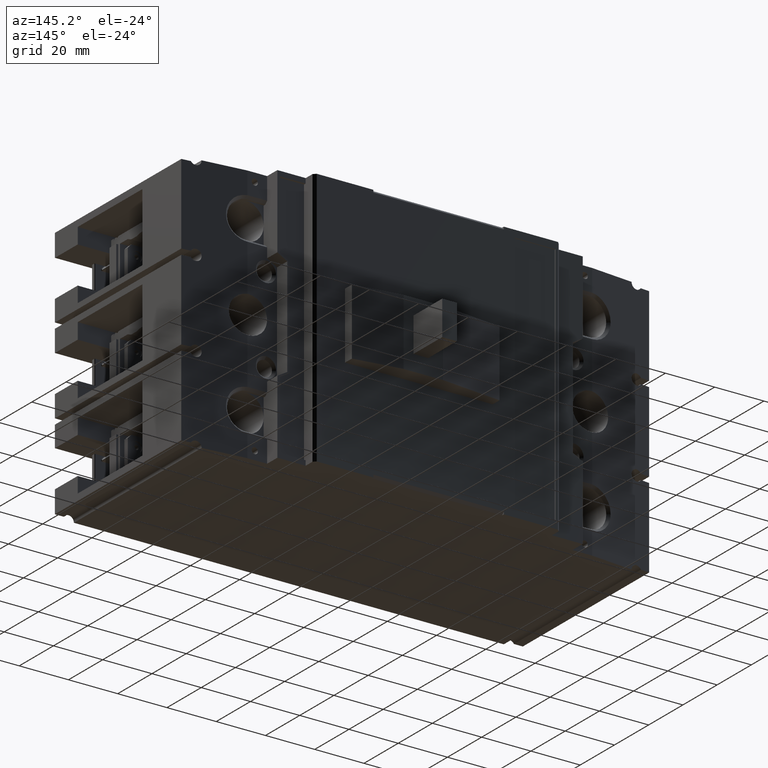
[diagram: clean part render]
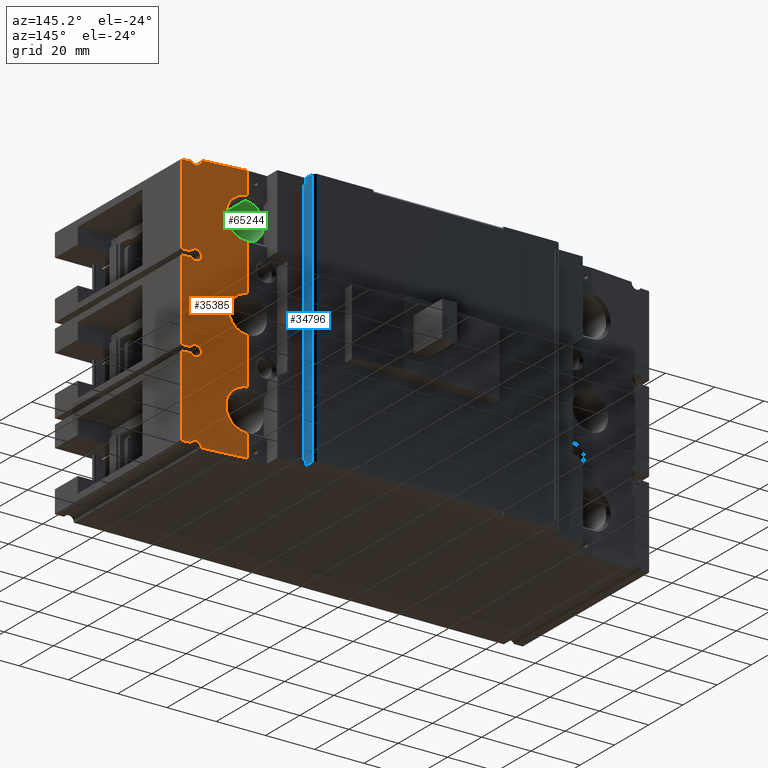
[diagram: same view with three faces highlighted in distinct colors, each labeled with its STEP entity id]
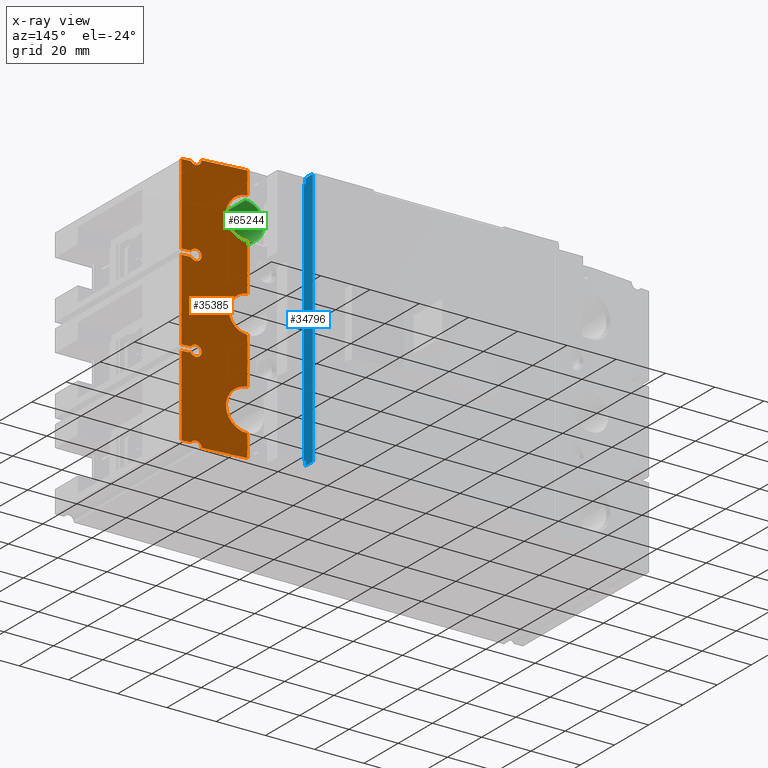
[diagram: x-ray of the same camera — body ghosted, the three highlighted faces saturated]
A machine part, auxiliary view with three faces highlighted in distinct colors.
The next image is the same camera in x-ray (body ghosted, the three faces saturated) — at least one of them is partly hidden behind the body in this view.
Their STEP definitions:

[orange] entity #35385 — the highlighted planar face has unit normal (-0.1062, -0.9943, 0).
#716 = CARTESIAN_POINT ( 'NONE',  ( 3.581346729293921172, 2.923653901594851945, -0.6174211225047644414 ) ) ;
#817 = PLANE ( 'NONE',  #7703 ) ;
#821 = DIRECTION ( 'NONE',  ( -0.000000000000000000, -0.000000000000000000, -1.000000000000000000 ) ) ;
#851 = CARTESIAN_POINT ( 'NONE',  ( 2.759465541847904824, 3.011430812414115366, 1.043831880186663064 ) ) ;
#962 = CARTESIAN_POINT ( 'NONE',  ( 3.523622047244094446, 2.929818897637774366, 0.6023622047244094890 ) ) ;
#1213 = EDGE_CURVE ( 'NONE', #73055, #65920, #57463, .T. ) ;
#1279 = CARTESIAN_POINT ( 'NONE',  ( 2.755900752126896780, 3.011811209409630763, -1.043776429652952364 ) ) ;
#2118 =( BOUNDED_CURVE ( )  B_SPLINE_CURVE ( 3, ( #962, #53749, #59148, #18683 ),
 .UNSPECIFIED., .F., .F. ) 
 B_SPLINE_CURVE_WITH_KNOTS ( ( 4, 4 ),
 ( 1.570796326794896558, 2.591545682068960410 ),
 .UNSPECIFIED. ) 
 CURVE ( )  GEOMETRIC_REPRESENTATION_ITEM ( )  RATIONAL_B_SPLINE_CURVE ( ( 1.000000000000000000, 0.9150410248622172782, 0.9150410248622172782, 1.000000000000000000 ) ) 
 REPRESENTATION_ITEM ( '' )  );
#2398 = LINE ( 'NONE', #24728, #31111 ) ;
#2434 = CARTESIAN_POINT ( 'NONE',  ( 2.759501042336657495, 3.011427020961888967, -1.043833442557797975 ) ) ;
#2450 = CARTESIAN_POINT ( 'NONE',  ( 3.540986028237870453, 2.927964424467638604, 1.929550841766272118 ) ) ;
#3131 = DIRECTION ( 'NONE',  ( -0.000000000000000000, -0.000000000000000000, 1.000000000000000000 ) ) ;
#3882 = B_SPLINE_CURVE_WITH_KNOTS ( 'NONE', 3,
 ( #30138, #52116, #41650, #64449, #64807, #75639, #53635, #34766, #70617, #851, #18168 ),
 .UNSPECIFIED., .F., .F.,
 ( 4, 1, 1, 1, 1, 1, 1, 1, 4 ),
 ( 0.000000000000000000, 0.0006743985581538102696, 0.002671109849455638712, 0.004667821140757462926, 0.006664532432059291911, 0.008661243723361118294, 0.01065795501466294468, 0.01265466630596477279, 0.01292373732341812152 ),
 .UNSPECIFIED. ) ;
#3953 = CARTESIAN_POINT ( 'NONE',  ( 3.437007874015748143, 2.939069291338564316, 1.958890770440286477 ) ) ;
#4185 = EDGE_CURVE ( 'NONE', #67054, #44710, #68939, .T. ) ;
#4301 = VERTEX_POINT ( 'NONE', #37973 ) ;
#5322 = CARTESIAN_POINT ( 'NONE',  ( 3.075043486386031422, 2.977727087937385608, 1.386806397334696017 ) ) ;
#5676 = VERTEX_POINT ( 'NONE', #8651 ) ;
#6059 = CARTESIAN_POINT ( 'NONE',  ( 3.075045458065042148, 2.977726877362108837, 1.378049800193145602 ) ) ;
#6298 = VECTOR ( 'NONE', #66789, 39.37007874015748854 ) ;
#6634 = EDGE_CURVE ( 'NONE', #4301, #47143, #69475, .T. ) ;
#6789 = EDGE_CURVE ( 'NONE', #62333, #69626, #23937, .T. ) ;
#7345 = ORIENTED_EDGE ( 'NONE', *, *, #29533, .T. ) ;
#7390 = VERTEX_POINT ( 'NONE', #57660 ) ;
#7703 = AXIS2_PLACEMENT_3D ( 'NONE', #47422, #11622, #70581 ) ;
#7907 = ORIENTED_EDGE ( 'NONE', *, *, #24096, .T. ) ;
#8148 = CARTESIAN_POINT ( 'NONE',  ( 3.028546731431917216, 2.982692941366612782, -1.554146043485832296 ) ) ;
#8387 = VERTEX_POINT ( 'NONE', #56187 ) ;
#8651 = CARTESIAN_POINT ( 'NONE',  ( 3.523622047244094446, 2.929818897637774366, -1.980314960629921295 ) ) ;
#9899 = EDGE_CURVE ( 'NONE', #40050, #8387, #21323, .T. ) ;
#9973 = ORIENTED_EDGE ( 'NONE', *, *, #65391, .T. ) ;
#10156 = LINE ( 'NONE', #33645, #32589 ) ;
#10313 = ORIENTED_EDGE ( 'NONE', *, *, #9899, .T. ) ;
#10428 = EDGE_CURVE ( 'NONE', #58907, #26809, #12778, .T. ) ;
#10969 = ORIENTED_EDGE ( 'NONE', *, *, #34590, .F. ) ;
#11102 = CARTESIAN_POINT ( 'NONE',  ( 3.523622047244094446, 2.929818897637774366, 0.7755905511811024278 ) ) ;
#11212 = CARTESIAN_POINT ( 'NONE',  ( 3.740157480314961536, 2.906692913385827026, -0.6437007874015747699 ) ) ;
#11516 = CARTESIAN_POINT ( 'NONE',  ( 3.523622047244094446, 2.929818897637774366, -0.6023622047244094890 ) ) ;
#11622 = DIRECTION ( 'NONE',  ( -0.1061960683430963198, -0.9943452092047653235, 0.000000000000000000 ) ) ;
#12184 = EDGE_CURVE ( 'NONE', #69626, #73055, #70622, .T. ) ;
#12347 = EDGE_CURVE ( 'NONE', #22120, #76008, #49479, .T. ) ;
#12376 = CARTESIAN_POINT ( 'NONE',  ( 2.755905511811024056, 3.011811023622047223, 2.066929133858267598 ) ) ;
#12620 = ORIENTED_EDGE ( 'NONE', *, *, #57159, .T. ) ;
#12778 = LINE ( 'NONE', #66315, #29905 ) ;
#13229 = CARTESIAN_POINT ( 'NONE',  ( 3.523622047244094446, 2.929818897637774366, -0.7755905511811024278 ) ) ;
#13313 = CARTESIAN_POINT ( 'NONE',  ( 3.437007874015748587, 2.939069291338573642, -2.066929133858267598 ) ) ;
#13603 = CARTESIAN_POINT ( 'NONE',  ( 3.061672135569503794, 2.979155148204748915, -1.273783796220279596 ) ) ;
#14175 = DIRECTION ( 'NONE',  ( -0.9943452092047166957, 0.1061960683435513170, 0.000000000000000000 ) ) ;
#14747 = CARTESIAN_POINT ( 'NONE',  ( 3.523622047244094446, 2.929818897637774366, -0.7755905511811024278 ) ) ;
#15033 =( BOUNDED_CURVE ( )  B_SPLINE_CURVE ( 3, ( #55985, #24861, #26300, #13313 ),
 .UNSPECIFIED., .F., .T. ) 
 B_SPLINE_CURVE_WITH_KNOTS ( ( 4, 4 ),
 ( 4.712388980384689674, 6.283185307179586232 ),
 .UNSPECIFIED. ) 
 CURVE ( )  GEOMETRIC_REPRESENTATION_ITEM ( )  RATIONAL_B_SPLINE_CURVE ( ( 1.000000000000000000, 0.8047378541243649375, 0.8047378541243649375, 1.000000000000000000 ) ) 
 REPRESENTATION_ITEM ( '' )  );
#15259 = EDGE_CURVE ( 'NONE', #38578, #7390, #44921, .T. ) ;
#16516 = CARTESIAN_POINT ( 'NONE',  ( 3.350393700787401396, 2.948319685039354265, 0.6023622047244096001 ) ) ;
#16725 = ORIENTED_EDGE ( 'NONE', *, *, #36002, .F. ) ;
#16779 = DIRECTION ( 'NONE',  ( -0.000000000000000000, -0.000000000000000000, 1.000000000000000000 ) ) ;
#17377 =( BOUNDED_CURVE ( )  B_SPLINE_CURVE ( 3, ( #65189, #30899, #35520, #71363 ),
 .UNSPECIFIED., .F., .F. ) 
 B_SPLINE_CURVE_WITH_KNOTS ( ( 4, 4 ),
 ( 4.712388980384689674, 7.853981633974482790 ),
 .UNSPECIFIED. ) 
 CURVE ( )  GEOMETRIC_REPRESENTATION_ITEM ( )  RATIONAL_B_SPLINE_CURVE ( ( 1.000000000000000000, 0.3333333333333333703, 0.3333333333333333703, 1.000000000000000000 ) ) 
 REPRESENTATION_ITEM ( '' )  );
#18168 = CARTESIAN_POINT ( 'NONE',  ( 2.755900903618701214, 3.011756421462688404, 1.043831635076535758 ) ) ;
#18291 = VERTEX_POINT ( 'NONE', #50097 ) ;
#18538 = CARTESIAN_POINT ( 'NONE',  ( 2.789347217779210908, 3.008239449424523038, -1.710211520500850124 ) ) ;
#18683 = CARTESIAN_POINT ( 'NONE',  ( 3.597460627297270896, 2.921932937288139964, 0.6437007874015749920 ) ) ;
#19006 = CARTESIAN_POINT ( 'NONE',  ( 2.917276082257390879, 2.994576646698449363, -1.090202272195455624 ) ) ;
#19020 = DIRECTION ( 'NONE',  ( 0.9943452092047166957, -0.1061960683435513170, 0.000000000000000000 ) ) ;
#19047 = ORIENTED_EDGE ( 'NONE', *, *, #10428, .F. ) ;
#19114 = EDGE_CURVE ( 'NONE', #76008, #58907, #47988, .T. ) ;
#19194 =( BOUNDED_CURVE ( )  B_SPLINE_CURVE ( 3, ( #47252, #35689, #70778, #59205 ),
 .UNSPECIFIED., .F., .F. ) 
 B_SPLINE_CURVE_WITH_KNOTS ( ( 4, 4 ),
 ( 3.691639625110624046, 4.712388980384689674 ),
 .UNSPECIFIED. ) 
 CURVE ( )  GEOMETRIC_REPRESENTATION_ITEM ( )  RATIONAL_B_SPLINE_CURVE ( ( 1.000000000000000000, 0.9150410248622169451, 0.9150410248622169451, 1.000000000000000000 ) ) 
 REPRESENTATION_ITEM ( '' )  );
#19306 = CARTESIAN_POINT ( 'NONE',  ( 2.759465541847906156, 3.011430812414116698, -1.712073631624361658 ) ) ;
#19358 = CARTESIAN_POINT ( 'NONE',  ( 3.073666009682896050, 2.977874202449259933, -1.334161257345227503 ) ) ;
#19533 = CARTESIAN_POINT ( 'NONE',  ( 3.740157480314960647, 2.906692913385827026, 0.7342519685039370358 ) ) ;
#19707 = VECTOR ( 'NONE', #75025, 39.37007874015748854 ) ;
#21153 = CARTESIAN_POINT ( 'NONE',  ( 3.523622047244094446, 2.929818897637774366, 0.6023622047244094890 ) ) ;
#21323 =( BOUNDED_CURVE ( )  B_SPLINE_CURVE ( 3, ( #13229, #43245, #53323, #24386 ),
 .UNSPECIFIED., .F., .T. ) 
 B_SPLINE_CURVE_WITH_KNOTS ( ( 4, 4 ),
 ( 1.570796326794896558, 2.591545682068960410 ),
 .UNSPECIFIED. ) 
 CURVE ( )  GEOMETRIC_REPRESENTATION_ITEM ( )  RATIONAL_B_SPLINE_CURVE ( ( 1.000000000000000000, 0.9150410248622172782, 0.9150410248622172782, 1.000000000000000000 ) ) 
 REPRESENTATION_ITEM ( '' )  );
#22120 = VERTEX_POINT ( 'NONE', #40549 ) ;
#22152 = EDGE_LOOP ( 'NONE', ( #42458, #61309, #68882, #73281, #22665, #7345, #10969, #37377, #59617, #29309, #12620, #38458, #56842, #7907, #9973, #62280, #10313, #67678, #48607, #69002, #55469, #31455, #19047, #63069, #30775, #16725, #57102, #58869, #58688 ) ) ;
#22300 = CARTESIAN_POINT ( 'NONE',  ( 2.755900752126896780, 3.011811209409630763, -1.043776429652952364 ) ) ;
#22665 = ORIENTED_EDGE ( 'NONE', *, *, #6634, .T. ) ;
#23782 = CARTESIAN_POINT ( 'NONE',  ( 3.073666009682895606, 2.977874202449259489, 1.421744254465795887 ) ) ;
#23937 = LINE ( 'NONE', #12376, #55515 ) ;
#24096 = EDGE_CURVE ( 'NONE', #36234, #51245, #10156, .T. ) ;
#24212 = CARTESIAN_POINT ( 'NONE',  ( 3.523622047244094446, 2.929818897637774366, 0.6023622047244094890 ) ) ;
#24218 = VECTOR ( 'NONE', #47815, 39.37007874015748143 ) ;
#24386 = CARTESIAN_POINT ( 'NONE',  ( 3.597460627297270896, 2.921932937288139964, -0.7342519685039370358 ) ) ;
#24603 = VERTEX_POINT ( 'NONE', #39209 ) ;
#24661 = VERTEX_POINT ( 'NONE', #38090 ) ;
#24728 = CARTESIAN_POINT ( 'NONE',  ( 3.740157480314960647, 2.906692913385827026, 2.066929133858267598 ) ) ;
#24861 = CARTESIAN_POINT ( 'NONE',  ( 3.472884639260662265, 2.935237652810406939, -1.980314960629921295 ) ) ;
#25161 = CARTESIAN_POINT ( 'NONE',  ( 2.789423595707148706, 3.008231292262029122, -1.045703238913955113 ) ) ;
#25257 = EDGE_CURVE ( 'NONE', #5676, #26809, #15033, .T. ) ;
#25869 = DIRECTION ( 'NONE',  ( -0.000000000000000000, -0.000000000000000000, 1.000000000000000000 ) ) ;
#26300 = CARTESIAN_POINT ( 'NONE',  ( 3.437007874015747255, 2.939069291338564760, -2.016191725874834972 ) ) ;
#26420 = EDGE_CURVE ( 'NONE', #44710, #62333, #3882, .T. ) ;
#26645 = CARTESIAN_POINT ( 'NONE',  ( 3.597460627297244695, 2.921932937288189258, 2.021653543307086576 ) ) ;
#26809 = VERTEX_POINT ( 'NONE', #71959 ) ;
#27442 = CARTESIAN_POINT ( 'NONE',  ( 3.597460627297270896, 2.921932937288139964, 2.021653543307086576 ) ) ;
#28162 = CARTESIAN_POINT ( 'NONE',  ( 2.755905511811024056, 3.011811023622047223, 2.066929133858267598 ) ) ;
#28805 = CARTESIAN_POINT ( 'NONE',  ( 2.917276082257389991, 2.994576646698449363, 1.665703239615567322 ) ) ;
#29168 = EDGE_CURVE ( 'NONE', #24603, #38578, #37637, .T. ) ;
#29309 = ORIENTED_EDGE ( 'NONE', *, *, #29919, .T. ) ;
#29533 = EDGE_CURVE ( 'NONE', #47143, #59437, #50554, .T. ) ;
#29572 = CARTESIAN_POINT ( 'NONE',  ( 3.740157480314961536, 2.906692913385827026, -2.021653543307086576 ) ) ;
#29905 = VECTOR ( 'NONE', #47420, 39.37007874015748854 ) ;
#29919 = EDGE_CURVE ( 'NONE', #7390, #76241, #72802, .T. ) ;
#30138 = CARTESIAN_POINT ( 'NONE',  ( 3.075045458065042148, 2.977726877362108837, 1.378049800193145602 ) ) ;
#30775 = ORIENTED_EDGE ( 'NONE', *, *, #12347, .F. ) ;
#30899 = CARTESIAN_POINT ( 'NONE',  ( 3.350393700787401396, 2.948319685039354265, -0.6023622047244096001 ) ) ;
#30952 = CARTESIAN_POINT ( 'NONE',  ( 3.597460627297244695, 2.921932937288189258, -0.7342519685039370358 ) ) ;
#30963 = EDGE_CURVE ( 'NONE', #36234, #18291, #2398, .T. ) ;
#30968 = LINE ( 'NONE', #37499, #50217 ) ;
#31111 = VECTOR ( 'NONE', #25869, 39.37007874015748143 ) ;
#31369 = VECTOR ( 'NONE', #3131, 39.37007874015748143 ) ;
#31455 = ORIENTED_EDGE ( 'NONE', *, *, #25257, .T. ) ;
#31629 = CARTESIAN_POINT ( 'NONE',  ( 3.554448634728778700, 2.926526618094409393, 0.7755905511811027608 ) ) ;
#31640 = CARTESIAN_POINT ( 'NONE',  ( 2.917184962002903337, 2.994586378341542510, -1.665760106237442528 ) ) ;
#32001 = VERTEX_POINT ( 'NONE', #56318 ) ;
#32589 = VECTOR ( 'NONE', #70996, 39.37007874015748854 ) ;
#33645 = CARTESIAN_POINT ( 'NONE',  ( 3.740157480314960647, 2.906692913385827026, -0.6437007874015749920 ) ) ;
#34590 = EDGE_CURVE ( 'NONE', #24603, #59437, #46437, .T. ) ;
#34766 = CARTESIAN_POINT ( 'NONE',  ( 2.844951658188984212, 3.002300895188785734, 1.056766054938854671 ) ) ;
#35331 = CARTESIAN_POINT ( 'NONE',  ( 2.979586023902064174, 2.987921944930734153, 1.616424668613766880 ) ) ;
#35385 = ADVANCED_FACE ( 'NONE', ( #75603 ), #817, .F. ) ;
#35520 = CARTESIAN_POINT ( 'NONE',  ( 3.350393700787401396, 2.948319685039354265, -0.7755905511811024278 ) ) ;
#35689 = CARTESIAN_POINT ( 'NONE',  ( 3.581346729293920728, 2.923653901594851945, -1.995373878410276580 ) ) ;
#36002 = EDGE_CURVE ( 'NONE', #65920, #22120, #48997, .T. ) ;
#36234 = VERTEX_POINT ( 'NONE', #11212 ) ;
#36297 = VERTEX_POINT ( 'NONE', #43138 ) ;
#36541 = VERTEX_POINT ( 'NONE', #45785 ) ;
#37377 = ORIENTED_EDGE ( 'NONE', *, *, #29168, .T. ) ;
#37499 = CARTESIAN_POINT ( 'NONE',  ( 3.740157480314960647, 2.906692913385827026, -2.021653543307086576 ) ) ;
#37637 = LINE ( 'NONE', #19533, #66544 ) ;
#37715 = CARTESIAN_POINT ( 'NONE',  ( 2.755905511811025388, 3.011811023622047223, 0.2946186918719638226 ) ) ;
#37973 = CARTESIAN_POINT ( 'NONE',  ( 3.437007874015748587, 2.939069291338573642, 2.066929133858267598 ) ) ;
#38090 = CARTESIAN_POINT ( 'NONE',  ( 3.597460627297286440, 2.921932937288137744, -2.021653543307077250 ) ) ;
#38239 = CARTESIAN_POINT ( 'NONE',  ( 2.755905511811025388, 3.011811023622047223, 0.2946186918719638226 ) ) ;
#38458 = ORIENTED_EDGE ( 'NONE', *, *, #43049, .T. ) ;
#38578 = VERTEX_POINT ( 'NONE', #42586 ) ;
#38871 = VECTOR ( 'NONE', #51674, 39.37007874015748143 ) ;
#39209 = CARTESIAN_POINT ( 'NONE',  ( 3.740157480314961536, 2.906692913385827026, 0.7342519685039370358 ) ) ;
#39217 = CARTESIAN_POINT ( 'NONE',  ( 3.350393700787401396, 2.948319685039354265, 0.7755905511811024278 ) ) ;
#39264 = LINE ( 'NONE', #55549, #31369 ) ;
#40050 = VERTEX_POINT ( 'NONE', #14747 ) ;
#40549 = CARTESIAN_POINT ( 'NONE',  ( 3.075045458065043480, 2.977726877362110169, -1.377855711617878232 ) ) ;
#40969 = EDGE_CURVE ( 'NONE', #8387, #42461, #41703, .T. ) ;
#41511 = CARTESIAN_POINT ( 'NONE',  ( 3.597460627297286440, 2.921932937288137744, -0.6437007874015652220 ) ) ;
#41639 = CARTESIAN_POINT ( 'NONE',  ( 3.437007874015748587, 2.939069291338582968, 2.066929133858267598 ) ) ;
#41650 = CARTESIAN_POINT ( 'NONE',  ( 3.073674121744990995, 2.977873336080992139, 1.334176544938844300 ) ) ;
#41703 = LINE ( 'NONE', #30952, #47974 ) ;
#42458 = ORIENTED_EDGE ( 'NONE', *, *, #26420, .F. ) ;
#42461 = VERTEX_POINT ( 'NONE', #73607 ) ;
#42586 = CARTESIAN_POINT ( 'NONE',  ( 3.597460627297286440, 2.921932937288137744, 0.7342519685039466948 ) ) ;
#42844 = CARTESIAN_POINT ( 'NONE',  ( 3.075043486386031866, 2.977727087937385608, -1.369099114476326928 ) ) ;
#43049 = EDGE_CURVE ( 'NONE', #36297, #18291, #57297, .T. ) ;
#43138 = CARTESIAN_POINT ( 'NONE',  ( 3.597460627297270896, 2.921932937288139964, 0.6437007874015749920 ) ) ;
#43172 = CARTESIAN_POINT ( 'NONE',  ( 3.075045458065043480, 2.977726877362110169, -1.377855711617878232 ) ) ;
#43196 = EDGE_CURVE ( 'NONE', #24661, #5676, #19194, .T. ) ;
#43245 = CARTESIAN_POINT ( 'NONE',  ( 3.554448634728777812, 2.926526618094409393, -0.7755905511811024278 ) ) ;
#44710 = VERTEX_POINT ( 'NONE', #61579 ) ;
#44921 =( BOUNDED_CURVE ( )  B_SPLINE_CURVE ( 3, ( #65164, #60932, #31629, #55144 ),
 .UNSPECIFIED., .F., .F. ) 
 B_SPLINE_CURVE_WITH_KNOTS ( ( 4, 4 ),
 ( 3.691639625110625378, 4.712388980384689674 ),
 .UNSPECIFIED. ) 
 CURVE ( )  GEOMETRIC_REPRESENTATION_ITEM ( )  RATIONAL_B_SPLINE_CURVE ( ( 1.000000000000000000, 0.9150410248622171672, 0.9150410248622171672, 1.000000000000000000 ) ) 
 REPRESENTATION_ITEM ( '' )  );
#45126 = CARTESIAN_POINT ( 'NONE',  ( 3.437007874015748587, 2.939069291338573642, 2.066929133858267598 ) ) ;
#45785 = CARTESIAN_POINT ( 'NONE',  ( 2.755905511811004960, 3.011811023622048555, 2.066929133858267598 ) ) ;
#45886 = EDGE_CURVE ( 'NONE', #4301, #36541, #47443, .T. ) ;
#46437 = LINE ( 'NONE', #51466, #48149 ) ;
#46485 = CARTESIAN_POINT ( 'NONE',  ( 2.759501042423326389, 3.011427020952632372, 1.712072069247808859 ) ) ;
#46551 = LINE ( 'NONE', #64690, #72450 ) ;
#46960 = EDGE_CURVE ( 'NONE', #57956, #24661, #30968, .T. ) ;
#47093 = CARTESIAN_POINT ( 'NONE',  ( 2.755905511811025388, 3.011811023622047223, -0.2946186918719638226 ) ) ;
#47143 = VERTEX_POINT ( 'NONE', #64784 ) ;
#47252 = CARTESIAN_POINT ( 'NONE',  ( 3.597460627297286440, 2.921932937288137744, -2.021653543307077250 ) ) ;
#47420 = DIRECTION ( 'NONE',  ( 0.9943452092047680990, -0.1061960683430691194, 0.000000000000000000 ) ) ;
#47422 = CARTESIAN_POINT ( 'NONE',  ( 2.755905511811024056, 3.011811023622047223, 2.066929133858267598 ) ) ;
#47443 = LINE ( 'NONE', #41639, #24218 ) ;
#47546 = EDGE_CURVE ( 'NONE', #36541, #67054, #46551, .T. ) ;
#47639 = CARTESIAN_POINT ( 'NONE',  ( 2.845062039195463743, 3.002289106497290749, 1.699102807941444082 ) ) ;
#47815 = DIRECTION ( 'NONE',  ( -0.9943452092047680990, 0.1061960683430690500, 0.000000000000000000 ) ) ;
#47974 = VECTOR ( 'NONE', #19020, 39.37007874015748854 ) ;
#47988 = LINE ( 'NONE', #66519, #71361 ) ;
#48149 = VECTOR ( 'NONE', #16779, 39.37007874015748143 ) ;
#48278 = CARTESIAN_POINT ( 'NONE',  ( 2.845062039195463743, 3.002289106497290749, -1.056802703869578419 ) ) ;
#48607 = ORIENTED_EDGE ( 'NONE', *, *, #60754, .F. ) ;
#48665 = CARTESIAN_POINT ( 'NONE',  ( 2.979586023902064618, 2.987921944930734153, -1.139480843197256066 ) ) ;
#48997 = B_SPLINE_CURVE_WITH_KNOTS ( 'NONE', 3,
 ( #1279, #2434, #25161, #48278, #19006, #48665, #72186, #13603, #19358, #42844, #68633 ),
 .UNSPECIFIED., .F., .F.,
 ( 4, 1, 1, 1, 1, 1, 1, 1, 4 ),
 ( 1.430489624538199204E-17, 0.0002723959706692588210, 0.002268860332972876849, 0.004265324695276490052, 0.006261789057580108460, 0.008258253419883725133, 0.01025471778218733920, 0.01225118214449095674, 0.01291890511805071466 ),
 .UNSPECIFIED. ) ;
#49479 = B_SPLINE_CURVE_WITH_KNOTS ( 'NONE', 3,
 ( #43172, #54398, #72129, #60561, #8148, #65174, #31640, #55155, #18538, #19306, #72509 ),
 .UNSPECIFIED., .F., .F.,
 ( 4, 1, 1, 1, 1, 1, 1, 1, 4 ),
 ( 0.000000000000000000, 0.0006743985581537614805, 0.002671109849455498200, 0.004667821140757230473, 0.006664532432058967518, 0.008661243723360701960, 0.01065795501466243640, 0.01265466630596417258, 0.01292373732341749182 ),
 .UNSPECIFIED. ) ;
#50097 = CARTESIAN_POINT ( 'NONE',  ( 3.740157480314961536, 2.906692913385827026, 0.6437007874015749920 ) ) ;
#50217 = VECTOR ( 'NONE', #54488, 39.37007874015748854 ) ;
#50554 = LINE ( 'NONE', #26645, #6298 ) ;
#50775 = CARTESIAN_POINT ( 'NONE',  ( 3.597460627297244695, 2.921932937288189258, 0.6437007874015749920 ) ) ;
#51245 = VERTEX_POINT ( 'NONE', #70810 ) ;
#51315 = CARTESIAN_POINT ( 'NONE',  ( 2.755905511811025388, 3.011811023622047223, -0.2946186918719638226 ) ) ;
#51466 = CARTESIAN_POINT ( 'NONE',  ( 3.740157480314960647, 2.906692913385827026, 2.066929133858267598 ) ) ;
#51674 = DIRECTION ( 'NONE',  ( -0.000000000000000000, -0.000000000000000000, -1.000000000000000000 ) ) ;
#52116 = CARTESIAN_POINT ( 'NONE',  ( 3.075048567751770712, 2.977726545247606271, 1.369205714057517564 ) ) ;
#53323 = CARTESIAN_POINT ( 'NONE',  ( 3.581346729293920728, 2.923653901594851501, -0.7605316334007473644 ) ) ;
#53460 = CARTESIAN_POINT ( 'NONE',  ( 3.061672135569502906, 2.979155148204748915, 1.482121715590743571 ) ) ;
#53635 = CARTESIAN_POINT ( 'NONE',  ( 2.917184962002902449, 2.994586378341541621, 1.090145405573581971 ) ) ;
#53749 = CARTESIAN_POINT ( 'NONE',  ( 3.554448634728777812, 2.926526618094409393, 0.6023622047244097111 ) ) ;
#54398 = CARTESIAN_POINT ( 'NONE',  ( 3.075048567751771600, 2.977726545247608048, -1.386699797753506491 ) ) ;
#54488 = DIRECTION ( 'NONE',  ( -0.9943452092047166957, 0.1061960683435513170, 0.000000000000000000 ) ) ;
#55144 = CARTESIAN_POINT ( 'NONE',  ( 3.523622047244094446, 2.929818897637774366, 0.7755905511811024278 ) ) ;
#55155 = CARTESIAN_POINT ( 'NONE',  ( 2.844951658188985988, 3.002300895188787955, -1.699139456872170495 ) ) ;
#55469 = ORIENTED_EDGE ( 'NONE', *, *, #43196, .T. ) ;
#55515 = VECTOR ( 'NONE', #821, 39.37007874015748143 ) ;
#55549 = CARTESIAN_POINT ( 'NONE',  ( 3.740157480314960647, 2.906692913385827026, 2.066929133858267598 ) ) ;
#55985 = CARTESIAN_POINT ( 'NONE',  ( 3.523622047244094446, 2.929818897637774366, -1.980314960629921295 ) ) ;
#56187 = CARTESIAN_POINT ( 'NONE',  ( 3.597460627297270896, 2.921932937288139964, -0.7342519685039370358 ) ) ;
#56318 = CARTESIAN_POINT ( 'NONE',  ( 3.523622047244094446, 2.929818897637774366, -0.6023622047244094890 ) ) ;
#56329 =( BOUNDED_CURVE ( )  B_SPLINE_CURVE ( 3, ( #41511, #716, #65839, #11516 ),
 .UNSPECIFIED., .F., .T. ) 
 B_SPLINE_CURVE_WITH_KNOTS ( ( 4, 4 ),
 ( 3.691639625110625378, 4.712388980384689674 ),
 .UNSPECIFIED. ) 
 CURVE ( )  GEOMETRIC_REPRESENTATION_ITEM ( )  RATIONAL_B_SPLINE_CURVE ( ( 1.000000000000000000, 0.9150410248622171672, 0.9150410248622171672, 1.000000000000000000 ) ) 
 REPRESENTATION_ITEM ( '' )  );
#56647 = CARTESIAN_POINT ( 'NONE',  ( 2.755900903618700326, 3.011756421462692401, -1.712073876734484079 ) ) ;
#56842 = ORIENTED_EDGE ( 'NONE', *, *, #30963, .F. ) ;
#57102 = ORIENTED_EDGE ( 'NONE', *, *, #1213, .F. ) ;
#57159 = EDGE_CURVE ( 'NONE', #76241, #36297, #2118, .T. ) ;
#57297 = LINE ( 'NONE', #50775, #19707 ) ;
#57463 = LINE ( 'NONE', #28162, #38871 ) ;
#57660 = CARTESIAN_POINT ( 'NONE',  ( 3.523622047244094446, 2.929818897637774366, 0.7755905511811024278 ) ) ;
#57956 = VERTEX_POINT ( 'NONE', #29572 ) ;
#58688 = ORIENTED_EDGE ( 'NONE', *, *, #6789, .F. ) ;
#58869 = ORIENTED_EDGE ( 'NONE', *, *, #12184, .F. ) ;
#58907 = VERTEX_POINT ( 'NONE', #73200 ) ;
#59148 = CARTESIAN_POINT ( 'NONE',  ( 3.581346729293920728, 2.923653901594851501, 0.6174211225047645524 ) ) ;
#59205 = CARTESIAN_POINT ( 'NONE',  ( 3.523622047244094446, 2.929818897637774366, -1.980314960629921295 ) ) ;
#59437 = VERTEX_POINT ( 'NONE', #68055 ) ;
#59617 = ORIENTED_EDGE ( 'NONE', *, *, #15259, .T. ) ;
#60008 = EDGE_CURVE ( 'NONE', #32001, #40050, #17377, .T. ) ;
#60561 = CARTESIAN_POINT ( 'NONE',  ( 3.061648752237122739, 2.979157645544565636, -1.482196093787638169 ) ) ;
#60754 = EDGE_CURVE ( 'NONE', #57956, #42461, #39264, .T. ) ;
#60932 = CARTESIAN_POINT ( 'NONE',  ( 3.581346729293921172, 2.923653901594851945, 0.7605316334007474754 ) ) ;
#61309 = ORIENTED_EDGE ( 'NONE', *, *, #4185, .F. ) ;
#61579 = CARTESIAN_POINT ( 'NONE',  ( 3.075045458065042148, 2.977726877362108837, 1.378049800193145602 ) ) ;
#61796 = CARTESIAN_POINT ( 'NONE',  ( 3.274664196387212289, 2.956407596109296154, -0.2599576692987887183 ) ) ;
#62280 = ORIENTED_EDGE ( 'NONE', *, *, #60008, .T. ) ;
#62333 = VERTEX_POINT ( 'NONE', #75045 ) ;
#62528 = CARTESIAN_POINT ( 'NONE',  ( 3.274664196387212289, 2.956407596109296154, 0.2599576692987889959 ) ) ;
#63069 = ORIENTED_EDGE ( 'NONE', *, *, #19114, .F. ) ;
#64449 = CARTESIAN_POINT ( 'NONE',  ( 3.061648752237121407, 2.979157645544564748, 1.273709418023386108 ) ) ;
#64690 = CARTESIAN_POINT ( 'NONE',  ( 2.755905511811024056, 3.011811023622047223, 0.000000000000000000 ) ) ;
#64784 = CARTESIAN_POINT ( 'NONE',  ( 3.597460627297270896, 2.921932937288139964, 2.021653543307086576 ) ) ;
#64807 = CARTESIAN_POINT ( 'NONE',  ( 3.028546731431915884, 2.982692941366611450, 1.201759468325192426 ) ) ;
#65164 = CARTESIAN_POINT ( 'NONE',  ( 3.597460627297286440, 2.921932937288137744, 0.7342519685039466948 ) ) ;
#65174 = CARTESIAN_POINT ( 'NONE',  ( 2.979517792998124914, 2.987929231991149681, -1.616494217585158433 ) ) ;
#65189 = CARTESIAN_POINT ( 'NONE',  ( 3.523622047244094446, 2.929818897637774366, -0.6023622047244094890 ) ) ;
#65391 = EDGE_CURVE ( 'NONE', #51245, #32001, #56329, .T. ) ;
#65839 = CARTESIAN_POINT ( 'NONE',  ( 3.554448634728778700, 2.926526618094409393, -0.6023622047244094890 ) ) ;
#65920 = VERTEX_POINT ( 'NONE', #22300 ) ;
#66122 = DIRECTION ( 'NONE',  ( -0.000000000000000000, 0.000000000000000000, -1.000000000000000000 ) ) ;
#66315 = CARTESIAN_POINT ( 'NONE',  ( 2.755905511811024056, 3.011811023622047223, -2.066929133858267598 ) ) ;
#66519 = CARTESIAN_POINT ( 'NONE',  ( 2.755905511811024056, 3.011811023622047223, 0.000000000000000000 ) ) ;
#66544 = VECTOR ( 'NONE', #14175, 39.37007874015748854 ) ;
#66789 = DIRECTION ( 'NONE',  ( 0.9943452092047166957, -0.1061960683435513170, 0.000000000000000000 ) ) ;
#67054 = VERTEX_POINT ( 'NONE', #75131 ) ;
#67678 = ORIENTED_EDGE ( 'NONE', *, *, #40969, .T. ) ;
#68055 = CARTESIAN_POINT ( 'NONE',  ( 3.740157480314961536, 2.906692913385827026, 2.021653543307086576 ) ) ;
#68633 = CARTESIAN_POINT ( 'NONE',  ( 3.075045458065043480, 2.977726877362110169, -1.377855711617878232 ) ) ;
#68882 = ORIENTED_EDGE ( 'NONE', *, *, #47546, .F. ) ;
#68939 = B_SPLINE_CURVE_WITH_KNOTS ( 'NONE', 3,
 ( #75819, #46485, #70414, #47639, #28805, #35331, #71174, #53460, #23782, #5322, #6059 ),
 .UNSPECIFIED., .F., .F.,
 ( 4, 1, 1, 1, 1, 1, 1, 1, 4 ),
 ( 2.860979249076398407E-17, 0.0002723959673831527332, 0.002268860329684497298, 0.004265324691985837580, 0.006261789054287182632, 0.008258253416588524215, 0.01025471777888986753, 0.01225118214119121085, 0.01291890511475020549 ),
 .UNSPECIFIED. ) ;
#69002 = ORIENTED_EDGE ( 'NONE', *, *, #46960, .T. ) ;
#69475 =( BOUNDED_CURVE ( )  B_SPLINE_CURVE ( 3, ( #45126, #3953, #2450, #27442 ),
 .UNSPECIFIED., .F., .F. ) 
 B_SPLINE_CURVE_WITH_KNOTS ( ( 4, 4 ),
 ( 0.000000000000000000, 2.591545682068960410 ),
 .UNSPECIFIED. ) 
 CURVE ( )  GEOMETRIC_REPRESENTATION_ITEM ( )  RATIONAL_B_SPLINE_CURVE ( ( 1.000000000000000000, 0.5143796934458872983, 0.5143796934458872983, 1.000000000000000000 ) ) 
 REPRESENTATION_ITEM ( '' )  );
#69626 = VERTEX_POINT ( 'NONE', #37715 ) ;
#69698 = DIRECTION ( 'NONE',  ( -0.000000000000000000, 0.000000000000000000, -1.000000000000000000 ) ) ;
#70414 = CARTESIAN_POINT ( 'NONE',  ( 2.789423595750010421, 3.008231292257450562, 1.710202272888516895 ) ) ;
#70581 = DIRECTION ( 'NONE',  ( 0.9943452092047652124, -0.1061960683430963059, 0.000000000000000000 ) ) ;
#70617 = CARTESIAN_POINT ( 'NONE',  ( 2.789347217779210020, 3.008239449424521261, 1.045693991310174598 ) ) ;
#70622 =( BOUNDED_CURVE ( )  B_SPLINE_CURVE ( 3, ( #38239, #62528, #61796, #51315 ),
 .UNSPECIFIED., .F., .T. ) 
 B_SPLINE_CURVE_WITH_KNOTS ( ( 4, 4 ),
 ( 1.637512475205127549, 4.645672831974458461 ),
 .UNSPECIFIED. ) 
 CURVE ( )  GEOMETRIC_REPRESENTATION_ITEM ( )  RATIONAL_B_SPLINE_CURVE ( ( 1.000000000000000000, 0.3777777777777817647, 0.3777777777777817647, 1.000000000000000000 ) ) 
 REPRESENTATION_ITEM ( '' )  );
#70778 = CARTESIAN_POINT ( 'NONE',  ( 3.554448634728777812, 2.926526618094409393, -1.980314960629921295 ) ) ;
#70810 = CARTESIAN_POINT ( 'NONE',  ( 3.597460627297286440, 2.921932937288137744, -0.6437007874015652220 ) ) ;
#70996 = DIRECTION ( 'NONE',  ( -0.9943452092047166957, 0.1061960683435513170, 0.000000000000000000 ) ) ;
#71174 = CARTESIAN_POINT ( 'NONE',  ( 3.028591645551043321, 2.982688144538608199, 1.554071098949564522 ) ) ;
#71361 = VECTOR ( 'NONE', #66122, 39.37007874015748143 ) ;
#71363 = CARTESIAN_POINT ( 'NONE',  ( 3.523622047244094446, 2.929818897637774366, -0.7755905511811024278 ) ) ;
#71959 = CARTESIAN_POINT ( 'NONE',  ( 3.437007874015748587, 2.939069291338573642, -2.066929133858267598 ) ) ;
#72129 = CARTESIAN_POINT ( 'NONE',  ( 3.073674121744991439, 2.977873336080993916, -1.421728966872180200 ) ) ;
#72186 = CARTESIAN_POINT ( 'NONE',  ( 3.028591645551043765, 2.982688144538608199, -1.201834412861458201 ) ) ;
#72450 = VECTOR ( 'NONE', #69698, 39.37007874015748143 ) ;
#72509 = CARTESIAN_POINT ( 'NONE',  ( 2.755900903618700326, 3.011756421462692401, -1.712073876734484079 ) ) ;
#72802 =( BOUNDED_CURVE ( )  B_SPLINE_CURVE ( 3, ( #11102, #39217, #16516, #21153 ),
 .UNSPECIFIED., .F., .F. ) 
 B_SPLINE_CURVE_WITH_KNOTS ( ( 4, 4 ),
 ( 4.712388980384689674, 7.853981633974482790 ),
 .UNSPECIFIED. ) 
 CURVE ( )  GEOMETRIC_REPRESENTATION_ITEM ( )  RATIONAL_B_SPLINE_CURVE ( ( 1.000000000000000000, 0.3333333333333333703, 0.3333333333333333703, 1.000000000000000000 ) ) 
 REPRESENTATION_ITEM ( '' )  );
#73055 = VERTEX_POINT ( 'NONE', #47093 ) ;
#73200 = CARTESIAN_POINT ( 'NONE',  ( 2.755905511811036490, 3.011811023622046335, -2.066929133858267598 ) ) ;
#73281 = ORIENTED_EDGE ( 'NONE', *, *, #45886, .F. ) ;
#73607 = CARTESIAN_POINT ( 'NONE',  ( 3.740157480314961536, 2.906692913385827026, -0.7342519685039369248 ) ) ;
#75025 = DIRECTION ( 'NONE',  ( 0.9943452092047166957, -0.1061960683435513170, 0.000000000000000000 ) ) ;
#75045 = CARTESIAN_POINT ( 'NONE',  ( 2.755900903618701214, 3.011756421462688404, 1.043831635076535758 ) ) ;
#75131 = CARTESIAN_POINT ( 'NONE',  ( 2.755900752260496134, 3.011811209444851922, 1.712129082115136036 ) ) ;
#75603 = FACE_OUTER_BOUND ( 'NONE', #22152, .T. ) ;
#75639 = CARTESIAN_POINT ( 'NONE',  ( 2.979517792998124914, 2.987929231991148793, 1.139411294225866289 ) ) ;
#75819 = CARTESIAN_POINT ( 'NONE',  ( 2.755900752260496134, 3.011811209444851922, 1.712129082115136036 ) ) ;
#76008 = VERTEX_POINT ( 'NONE', #56647 ) ;
#76241 = VERTEX_POINT ( 'NONE', #24212 ) ;

[blue] entity #34796 — the highlighted planar face has unit normal (1, 0, 0).
#316 = VECTOR ( 'NONE', #25646, 39.37007874015748143 ) ;
#4266 = EDGE_CURVE ( 'NONE', #64323, #19503, #42994, .T. ) ;
#6341 = LINE ( 'NONE', #12900, #7956 ) ;
#7186 = LINE ( 'NONE', #25271, #316 ) ;
#7548 = CARTESIAN_POINT ( 'NONE',  ( 1.988188976377952999, 3.248031496062992574, 2.066929133858267598 ) ) ;
#7956 = VECTOR ( 'NONE', #42516, 39.37007874015748143 ) ;
#8346 = EDGE_CURVE ( 'NONE', #28296, #64323, #49261, .T. ) ;
#8670 = DIRECTION ( 'NONE',  ( 0.000000000000000000, 0.000000000000000000, -1.000000000000000000 ) ) ;
#9090 = EDGE_CURVE ( 'NONE', #25110, #18245, #30133, .T. ) ;
#11777 = ORIENTED_EDGE ( 'NONE', *, *, #8346, .T. ) ;
#12900 = CARTESIAN_POINT ( 'NONE',  ( 1.988188976377952999, 3.248031496062992574, 2.066929133858267598 ) ) ;
#15303 = ORIENTED_EDGE ( 'NONE', *, *, #16126, .T. ) ;
#15342 = DIRECTION ( 'NONE',  ( 0.000000000000000000, -1.000000000000000000, -0.000000000000000000 ) ) ;
#15995 = CARTESIAN_POINT ( 'NONE',  ( 1.988188976377952999, 3.248031496062992574, 2.066929133858267598 ) ) ;
#16105 = LINE ( 'NONE', #39966, #63231 ) ;
#16126 = EDGE_CURVE ( 'NONE', #25110, #28240, #61256, .T. ) ;
#18245 = VERTEX_POINT ( 'NONE', #20785 ) ;
#19242 = EDGE_LOOP ( 'NONE', ( #41795, #39332, #39059, #15303, #40294, #28392, #11777, #22419 ) ) ;
#19503 = VERTEX_POINT ( 'NONE', #24454 ) ;
#20785 = CARTESIAN_POINT ( 'NONE',  ( 1.988188976377953221, 3.248031496062992574, -2.066929133858267598 ) ) ;
#22419 = ORIENTED_EDGE ( 'NONE', *, *, #4266, .T. ) ;
#24433 = VECTOR ( 'NONE', #67062, 39.37007874015748143 ) ;
#24454 = CARTESIAN_POINT ( 'NONE',  ( 1.988188976377952999, 3.208661417322834719, -1.988188976377952999 ) ) ;
#25110 = VERTEX_POINT ( 'NONE', #39889 ) ;
#25271 = CARTESIAN_POINT ( 'NONE',  ( 1.988188976377952999, 3.248031496062992574, -1.988188976377952999 ) ) ;
#25646 = DIRECTION ( 'NONE',  ( 0.000000000000000000, 1.000000000000000000, 0.000000000000000000 ) ) ;
#27672 = DIRECTION ( 'NONE',  ( 0.000000000000000000, 0.000000000000000000, -1.000000000000000000 ) ) ;
#28240 = VERTEX_POINT ( 'NONE', #52689 ) ;
#28296 = VERTEX_POINT ( 'NONE', #67604 ) ;
#28392 = ORIENTED_EDGE ( 'NONE', *, *, #69246, .T. ) ;
#29224 = VECTOR ( 'NONE', #43770, 39.37007874015748143 ) ;
#30133 = LINE ( 'NONE', #70966, #63129 ) ;
#31845 = CARTESIAN_POINT ( 'NONE',  ( 1.988188976377952999, 3.208661417322834719, 2.066929133858267598 ) ) ;
#34796 = ADVANCED_FACE ( 'NONE', ( #61862 ), #56081, .T. ) ;
#37753 = EDGE_CURVE ( 'NONE', #72442, #28240, #63537, .T. ) ;
#39059 = ORIENTED_EDGE ( 'NONE', *, *, #9090, .F. ) ;
#39332 = ORIENTED_EDGE ( 'NONE', *, *, #60387, .T. ) ;
#39889 = CARTESIAN_POINT ( 'NONE',  ( 1.988188976377953221, 3.405511811023622215, -2.066929133858268042 ) ) ;
#39966 = CARTESIAN_POINT ( 'NONE',  ( 1.988188976377952999, 3.248031496062992574, 2.066929133858267598 ) ) ;
#40294 = ORIENTED_EDGE ( 'NONE', *, *, #37753, .F. ) ;
#41795 = ORIENTED_EDGE ( 'NONE', *, *, #66405, .T. ) ;
#42516 = DIRECTION ( 'NONE',  ( 0.000000000000000000, 0.000000000000000000, -1.000000000000000000 ) ) ;
#42994 = LINE ( 'NONE', #31845, #29224 ) ;
#43373 = VECTOR ( 'NONE', #15342, 39.37007874015748143 ) ;
#43770 = DIRECTION ( 'NONE',  ( 0.000000000000000000, 0.000000000000000000, -1.000000000000000000 ) ) ;
#44592 = CARTESIAN_POINT ( 'NONE',  ( 1.988188976377952999, 3.248031496062992574, 1.988188976377952999 ) ) ;
#49261 = LINE ( 'NONE', #44592, #43373 ) ;
#49715 = CARTESIAN_POINT ( 'NONE',  ( 1.988188976377952999, 3.405511811023622215, 2.066929133858267598 ) ) ;
#52689 = CARTESIAN_POINT ( 'NONE',  ( 1.988188976377953221, 3.405511811023622215, 2.066929133858268042 ) ) ;
#52708 = CARTESIAN_POINT ( 'NONE',  ( 1.988188976377952999, 3.208661417322834719, 1.988188976377952999 ) ) ;
#52867 = DIRECTION ( 'NONE',  ( -0.000000000000000000, -1.000000000000000000, -0.000000000000000000 ) ) ;
#56081 = PLANE ( 'NONE',  #60497 ) ;
#57378 = CARTESIAN_POINT ( 'NONE',  ( 1.988188976377953443, 0.000000000000000000, 2.066929133858267598 ) ) ;
#57754 = DIRECTION ( 'NONE',  ( -0.000000000000000000, 1.000000000000000000, 0.000000000000000000 ) ) ;
#60387 = EDGE_CURVE ( 'NONE', #66879, #18245, #6341, .T. ) ;
#60497 = AXIS2_PLACEMENT_3D ( 'NONE', #7548, #67624, #8670 ) ;
#61256 = LINE ( 'NONE', #49715, #24433 ) ;
#61862 = FACE_OUTER_BOUND ( 'NONE', #19242, .T. ) ;
#63129 = VECTOR ( 'NONE', #52867, 39.37007874015748143 ) ;
#63231 = VECTOR ( 'NONE', #27672, 39.37007874015748143 ) ;
#63537 = LINE ( 'NONE', #57378, #72953 ) ;
#64323 = VERTEX_POINT ( 'NONE', #52708 ) ;
#66405 = EDGE_CURVE ( 'NONE', #19503, #66879, #7186, .T. ) ;
#66879 = VERTEX_POINT ( 'NONE', #69140 ) ;
#67062 = DIRECTION ( 'NONE',  ( -0.000000000000000000, -0.000000000000000000, 1.000000000000000000 ) ) ;
#67604 = CARTESIAN_POINT ( 'NONE',  ( 1.988188976377952999, 3.248031496062992574, 1.988188976377952999 ) ) ;
#67624 = DIRECTION ( 'NONE',  ( 1.000000000000000000, 0.000000000000000000, 0.000000000000000000 ) ) ;
#69140 = CARTESIAN_POINT ( 'NONE',  ( 1.988188976377953221, 3.248031496062992574, -1.988188976377953221 ) ) ;
#69246 = EDGE_CURVE ( 'NONE', #72442, #28296, #16105, .T. ) ;
#70966 = CARTESIAN_POINT ( 'NONE',  ( 1.988188976377952999, 0.000000000000000000, -2.066929133858267598 ) ) ;
#72442 = VERTEX_POINT ( 'NONE', #15995 ) ;
#72953 = VECTOR ( 'NONE', #57754, 39.37007874015748143 ) ;

[green] entity #65244 — the highlighted cylindrical surface (edge-blend (fillet) strip) has radius 7.5 mm, axis along (0, 1, 0).
#282 = ORIENTED_EDGE ( 'NONE', *, *, #24453, .F. ) ;
#977 = ORIENTED_EDGE ( 'NONE', *, *, #26926, .F. ) ;
#1381 = EDGE_CURVE ( 'NONE', #38774, #26941, #24199, .T. ) ;
#2980 = CARTESIAN_POINT ( 'NONE',  ( 2.736220472440945350, 2.933070866141732402, 1.377952755905512028 ) ) ;
#4010 = CARTESIAN_POINT ( 'NONE',  ( 2.736220472440945350, 3.011811023622047223, 1.082677165354330784 ) ) ;
#5187 = CARTESIAN_POINT ( 'NONE',  ( 2.736220472440945350, 2.933070866141732402, 1.673228346456693050 ) ) ;
#5895 = EDGE_CURVE ( 'NONE', #35009, #8524, #51353, .T. ) ;
#6026 = VECTOR ( 'NONE', #38278, 39.37007874015748143 ) ;
#6586 = CARTESIAN_POINT ( 'NONE',  ( 2.736220472440945350, 3.011811023622047223, 1.673228346456693050 ) ) ;
#8524 = VERTEX_POINT ( 'NONE', #47617 ) ;
#11243 = EDGE_LOOP ( 'NONE', ( #37107, #52972, #977, #72529, #282 ) ) ;
#23902 = LINE ( 'NONE', #6586, #75661 ) ;
#24199 = CIRCLE ( 'NONE', #73484, 0.2952755905511810774 ) ;
#24453 = EDGE_CURVE ( 'NONE', #74480, #38774, #23902, .T. ) ;
#26564 = CYLINDRICAL_SURFACE ( 'NONE', #33350, 0.2952755905511810774 ) ;
#26926 = EDGE_CURVE ( 'NONE', #26941, #8524, #56675, .T. ) ;
#26941 = VERTEX_POINT ( 'NONE', #66956 ) ;
#27640 = EDGE_CURVE ( 'NONE', #35009, #74480, #33334, .T. ) ;
#30911 = DIRECTION ( 'NONE',  ( 0.000000000000000000, 0.000000000000000000, 1.000000000000000000 ) ) ;
#31254 = FACE_OUTER_BOUND ( 'NONE', #11243, .T. ) ;
#32239 = DIRECTION ( 'NONE',  ( -0.000000000000000000, -1.000000000000000000, -0.000000000000000000 ) ) ;
#33334 = CIRCLE ( 'NONE', #49316, 0.2952755905511810774 ) ;
#33350 = AXIS2_PLACEMENT_3D ( 'NONE', #54764, #60916, #50092 ) ;
#35009 = VERTEX_POINT ( 'NONE', #35191 ) ;
#35191 = CARTESIAN_POINT ( 'NONE',  ( 2.736220472440945350, 2.011811023622047223, 1.082677165354330784 ) ) ;
#37107 = ORIENTED_EDGE ( 'NONE', *, *, #27640, .F. ) ;
#38278 = DIRECTION ( 'NONE',  ( 0.000000000000000000, 1.000000000000000000, 0.000000000000000000 ) ) ;
#38774 = VERTEX_POINT ( 'NONE', #5187 ) ;
#40624 = AXIS2_PLACEMENT_3D ( 'NONE', #2980, #32239, #49966 ) ;
#47617 = CARTESIAN_POINT ( 'NONE',  ( 2.736220472098425560, 2.933070866141732402, 1.082677165354330784 ) ) ;
#49316 = AXIS2_PLACEMENT_3D ( 'NONE', #72940, #71787, #30911 ) ;
#49744 = CARTESIAN_POINT ( 'NONE',  ( 2.736220472440945350, 2.933070866141732402, 1.377952755905512028 ) ) ;
#49966 = DIRECTION ( 'NONE',  ( 0.000000000000000000, 0.000000000000000000, 1.000000000000000000 ) ) ;
#50092 = DIRECTION ( 'NONE',  ( 0.000000000000000000, 0.000000000000000000, 1.000000000000000000 ) ) ;
#51353 = LINE ( 'NONE', #4010, #6026 ) ;
#52972 = ORIENTED_EDGE ( 'NONE', *, *, #5895, .T. ) ;
#54764 = CARTESIAN_POINT ( 'NONE',  ( 2.736220472440945350, 3.011811023622047223, 1.377952755905512028 ) ) ;
#56675 = CIRCLE ( 'NONE', #40624, 0.2952755905511810774 ) ;
#57811 = DIRECTION ( 'NONE',  ( 0.000000000000000000, 1.000000000000000000, 0.000000000000000000 ) ) ;
#60916 = DIRECTION ( 'NONE',  ( 0.000000000000000000, 1.000000000000000000, 0.000000000000000000 ) ) ;
#60964 = CARTESIAN_POINT ( 'NONE',  ( 2.736220472440945350, 2.011811023622047223, 1.673228346456693050 ) ) ;
#65244 = ADVANCED_FACE ( 'NONE', ( #31254 ), #26564, .F. ) ;
#65932 = DIRECTION ( 'NONE',  ( -0.000000000000000000, -1.000000000000000000, -0.000000000000000000 ) ) ;
#66956 = CARTESIAN_POINT ( 'NONE',  ( 2.440944881889763884, 2.933070866141732402, 1.377952755905512028 ) ) ;
#71787 = DIRECTION ( 'NONE',  ( 0.000000000000000000, 1.000000000000000000, 0.000000000000000000 ) ) ;
#72529 = ORIENTED_EDGE ( 'NONE', *, *, #1381, .F. ) ;
#72878 = DIRECTION ( 'NONE',  ( 0.000000000000000000, 0.000000000000000000, 1.000000000000000000 ) ) ;
#72940 = CARTESIAN_POINT ( 'NONE',  ( 2.736220472440945350, 2.011811023622047223, 1.377952755905512028 ) ) ;
#73484 = AXIS2_PLACEMENT_3D ( 'NONE', #49744, #65932, #72878 ) ;
#74480 = VERTEX_POINT ( 'NONE', #60964 ) ;
#75661 = VECTOR ( 'NONE', #57811, 39.37007874015748143 ) ;